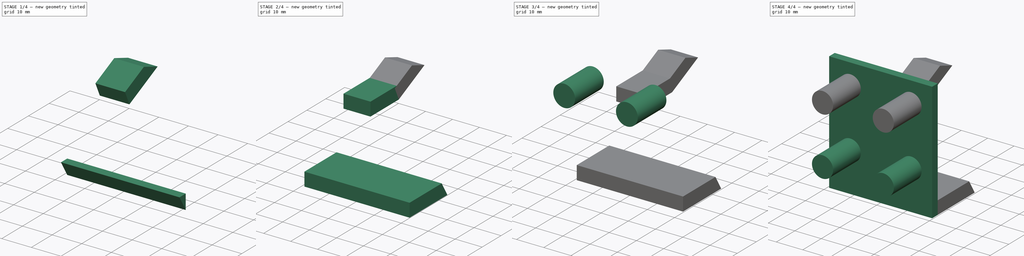
[diagram: build sequence overview — one tinted view per stage of 4, left to right]
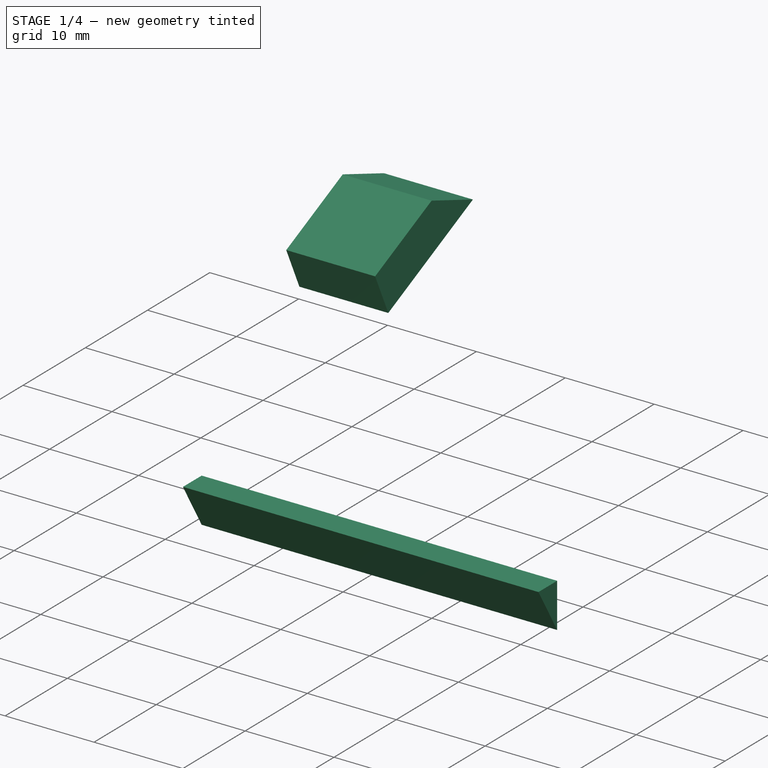
[diagram: stage 1 of 4 — iso view after this stage's code; geometry added in this stage tinted green]
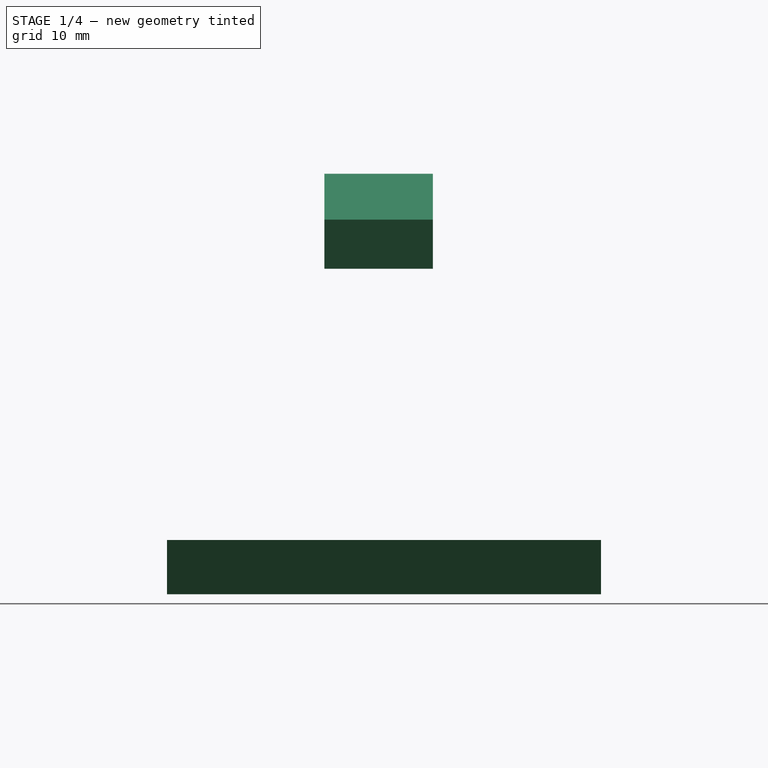
[diagram: stage 1 of 4 — front view after this stage's code; geometry added in this stage tinted green]
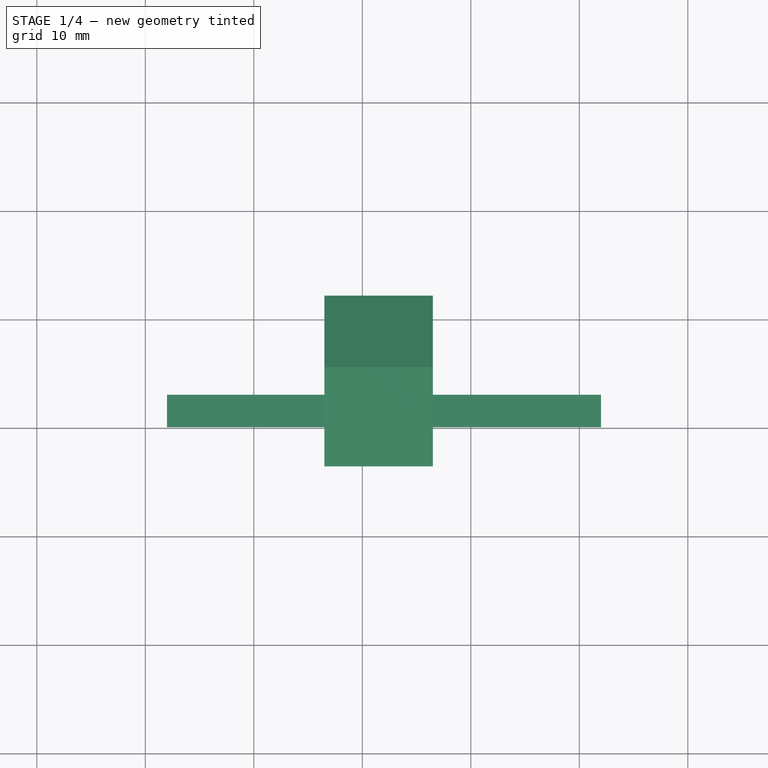
[diagram: stage 1 of 4 — top view after this stage's code; geometry added in this stage tinted green]
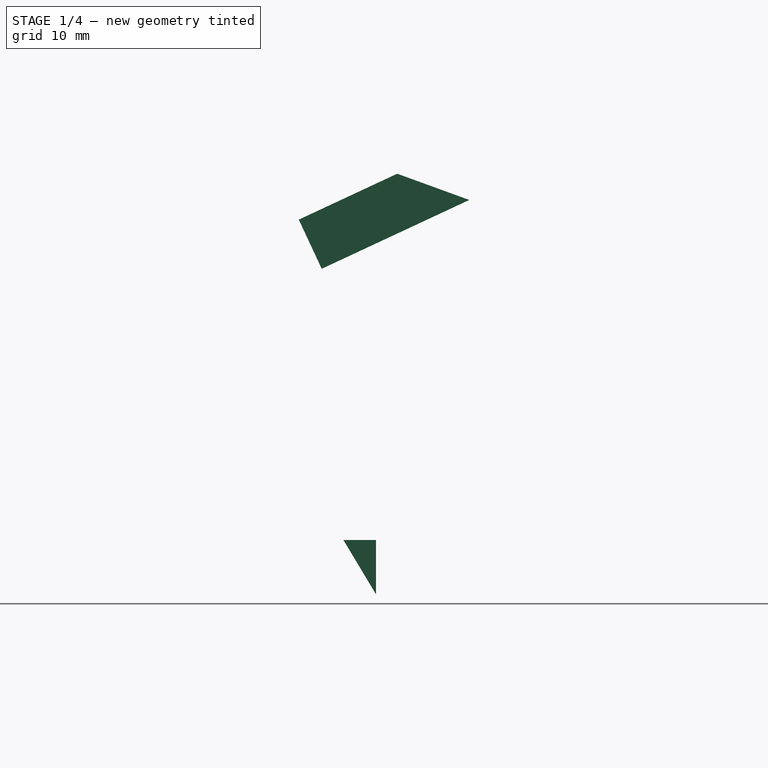
[diagram: stage 1 of 4 — right view after this stage's code; geometry added in this stage tinted green]
FCSTD DOCUMENT  (FreeCAD 0.15R4671 (Git))
Label: Holder_V7
License: All rights reserved
LicenseURL: http://en.wikipedia.org/wiki/All_rights_reserved
objects: Part::Box×4, Part::Cylinder×4, Sketcher::SketchObject×1, PartDesign::Pad×1, Part::Cut×1, Part::Chamfer×1
note: 13 computed .brp shape members not serialized (recipe doc carries the construction recipe); baked Part::Feature solids carry a one-line shape summary decoded from their .brp

FEATURE [Part::Box] Box003  label="Hook2"
  Height = 5
  Length = 10
  Placement = pos=(6.5,18,15) rot=(1,0,0;0.436332rad)
  Width = 15
FEATURE [Sketcher::SketchObject] Sketch
  Placement = pos=(32,23,-5) rot=(0.57735,0.57735,0.57735;2.0944rad)
  sketch-geometry (3):
    g0: LineSegment StartX=0 StartY=-5 StartZ=0 EndX=-3 EndY=-5 EndZ=0
    g1: LineSegment StartX=-3 StartY=-5 StartZ=0 EndX=5.3545e-08 EndY=-10 EndZ=0
    g2: LineSegment StartX=5.3545e-08 StartY=-10 StartZ=0 EndX=0 EndY=-5 EndZ=0
  constraints (9):
    c: Coincident(g0,g1)
    c: Coincident(g1,g2)
    c: Coincident(g2,g0)
    c: Distance(g0) = 3
    c: Distance(g2) = 5
    c: DistanceY(g-1,g0) = -5
    c: DistanceX(g-1,g0) = 0
    c: DistanceX(g-1,g0) = -3
    c: DistanceY(g-1,g1) = -10
FEATURE [PartDesign::Pad] Pad
  Length = 40
  Length2 = 100
  Placement = pos=(32,23,-5) rot=(0.57735,0.57735,0.57735;2.0944rad)
  Reversed = true
  Sketch = -> Sketch
  Type = 0
FEATURE [Part::Chamfer] Chamfer
  Base = -> Box003
  Edges = 1 edges r=4.99: [Edge12]
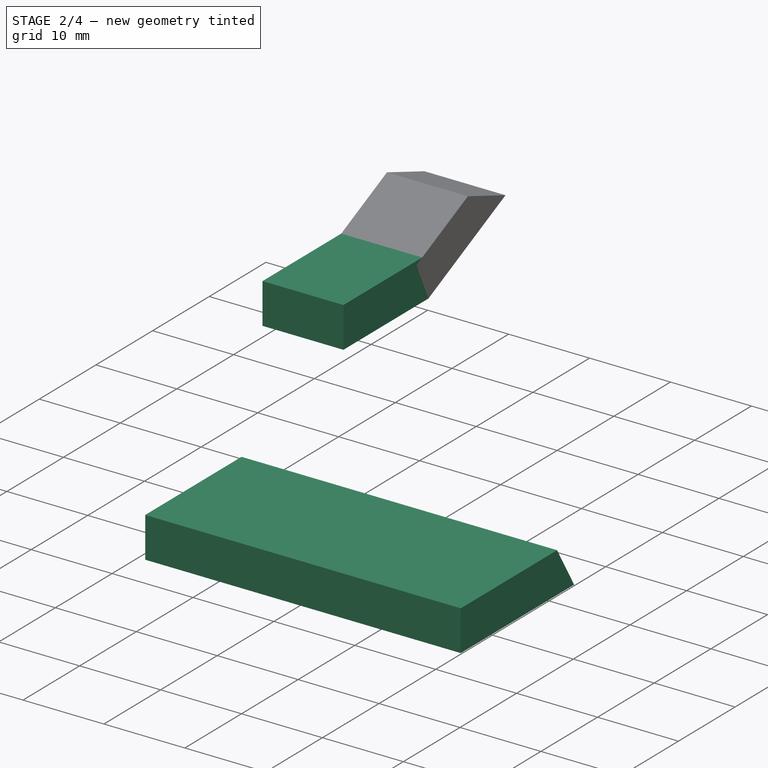
[diagram: stage 2 of 4 — iso view after this stage's code; geometry added in this stage tinted green]
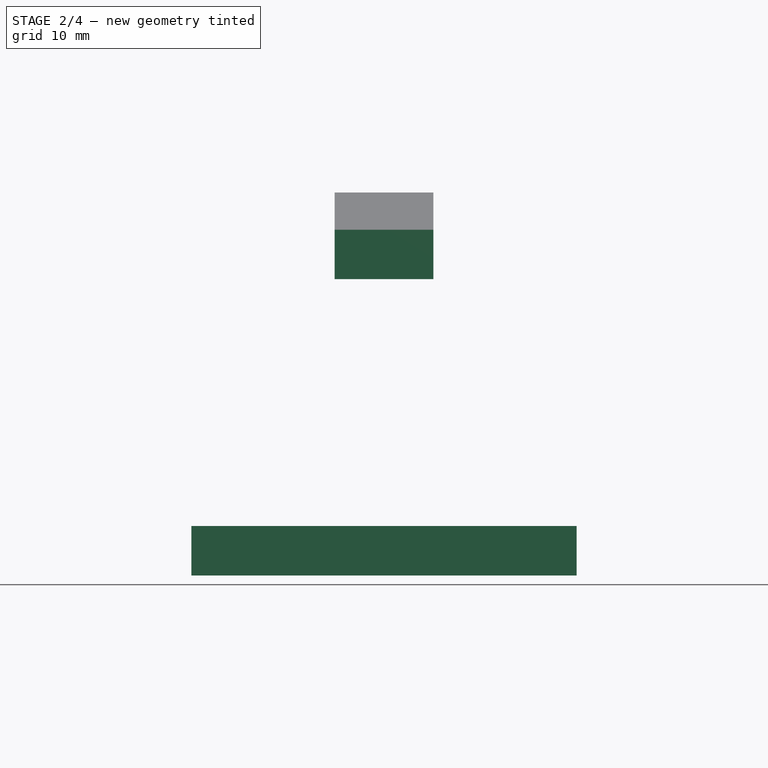
[diagram: stage 2 of 4 — front view after this stage's code; geometry added in this stage tinted green]
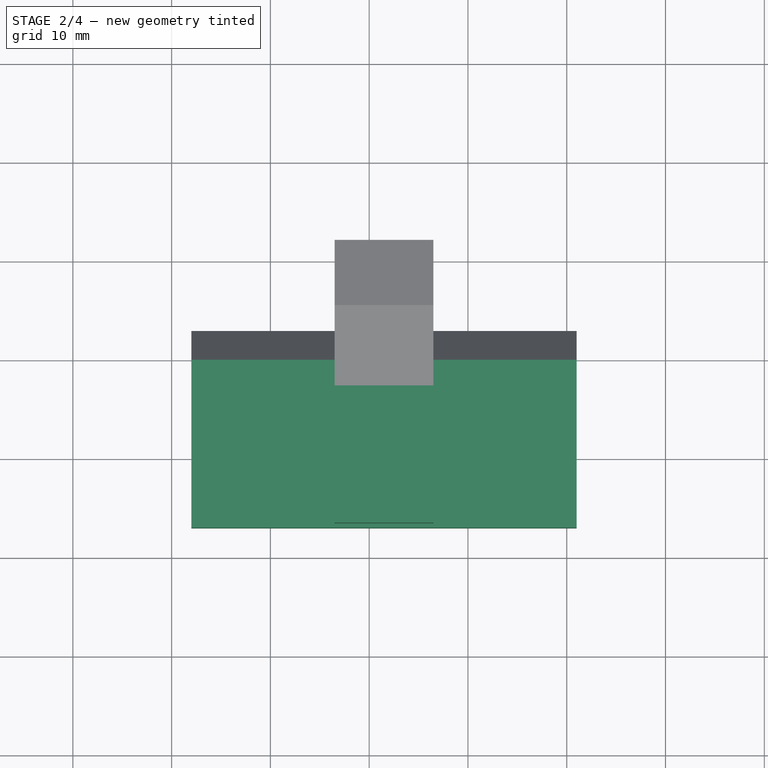
[diagram: stage 2 of 4 — top view after this stage's code; geometry added in this stage tinted green]
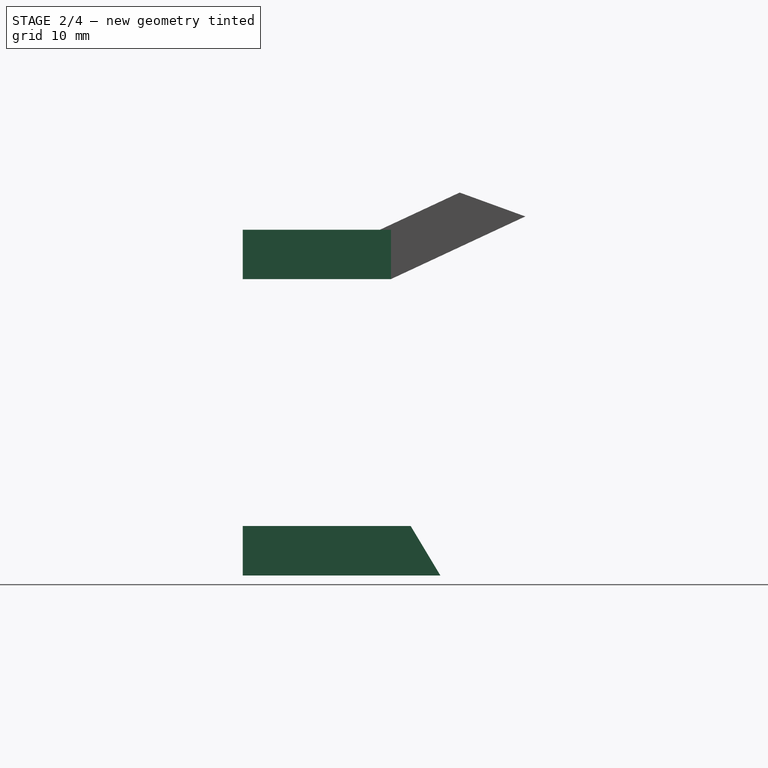
[diagram: stage 2 of 4 — right view after this stage's code; geometry added in this stage tinted green]
FEATURE [Part::Box] Box001  label="Holder"
  Height = 5
  Length = 39
  Placement = pos=(-8,3,-15) rot=(0,0,1;0rad)
  Width = 20
FEATURE [Part::Box] Box002  label="Hook"
  Height = 5
  Length = 10
  Placement = pos=(6.5,3,15) rot=(0,0,1;0rad)
  Width = 15
FEATURE [Part::Cut] Cut
  Base = -> Box001
  Tool = -> Pad
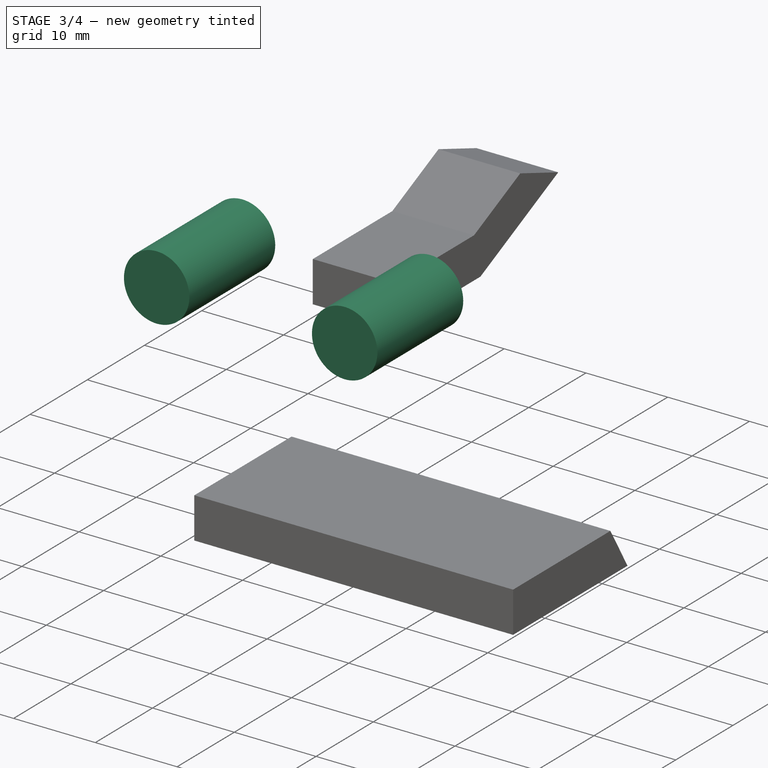
[diagram: stage 3 of 4 — iso view after this stage's code; geometry added in this stage tinted green]
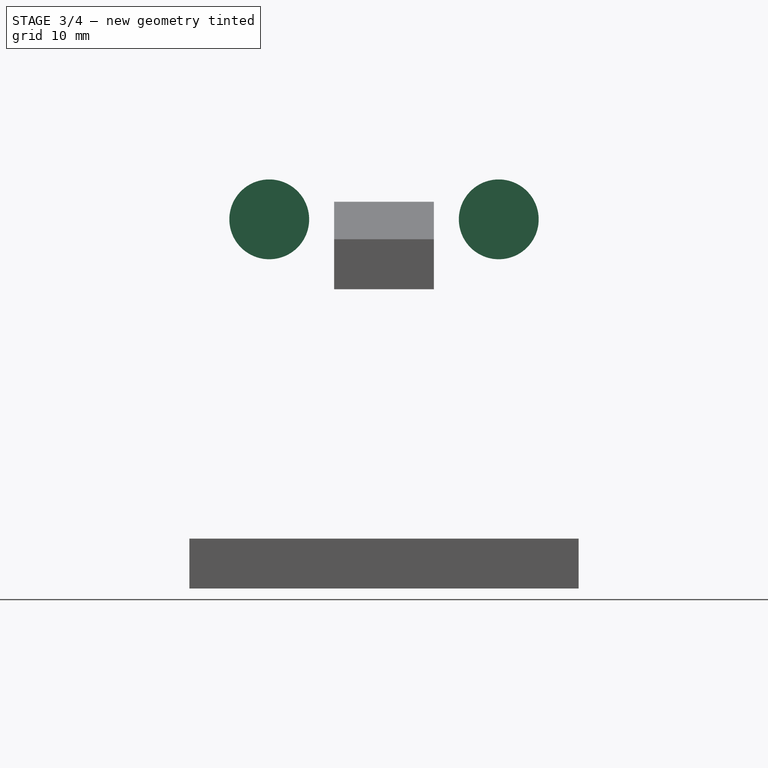
[diagram: stage 3 of 4 — front view after this stage's code; geometry added in this stage tinted green]
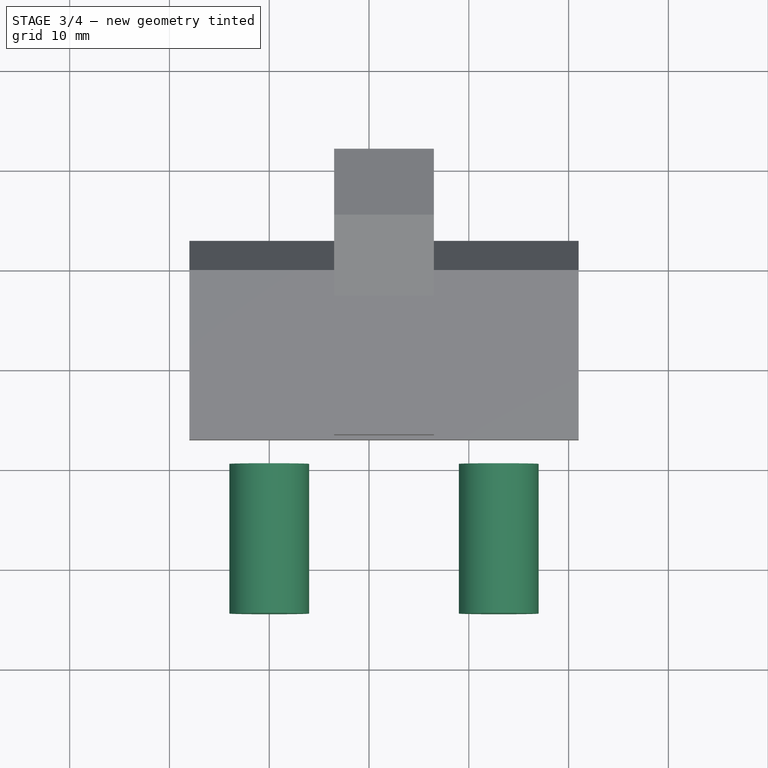
[diagram: stage 3 of 4 — top view after this stage's code; geometry added in this stage tinted green]
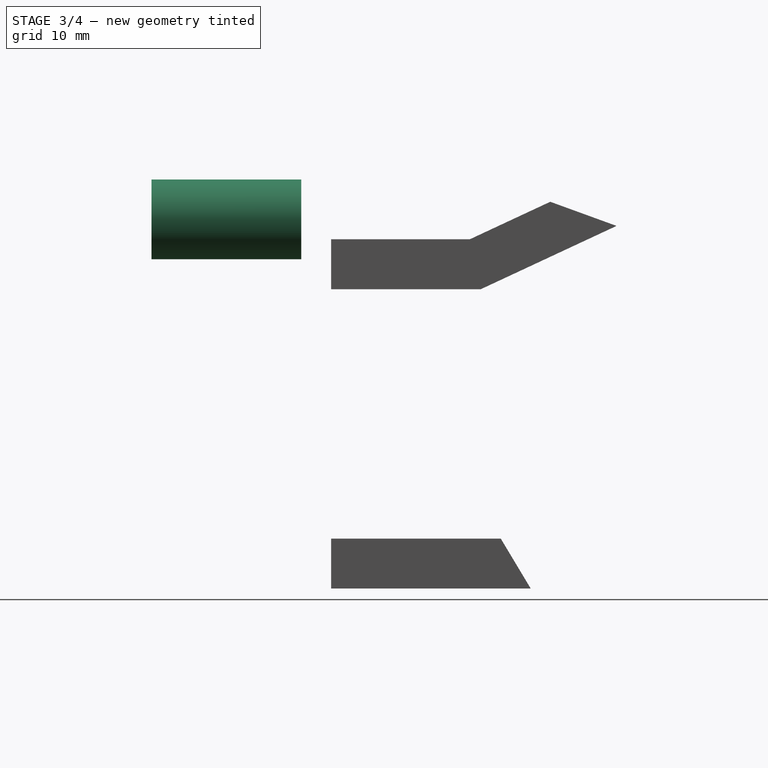
[diagram: stage 3 of 4 — right view after this stage's code; geometry added in this stage tinted green]
FEATURE [Part::Cylinder] Cylinder002  label="Pin3"
  Angle = 360
  Height = 15
  Placement = pos=(0,0,22) rot=(1,0,0;1.5708rad)
  Radius = 4
FEATURE [Part::Cylinder] Cylinder003  label="Pin4"
  Angle = 360
  Height = 15
  Placement = pos=(23,0,22) rot=(1,0,0;1.5708rad)
  Radius = 4
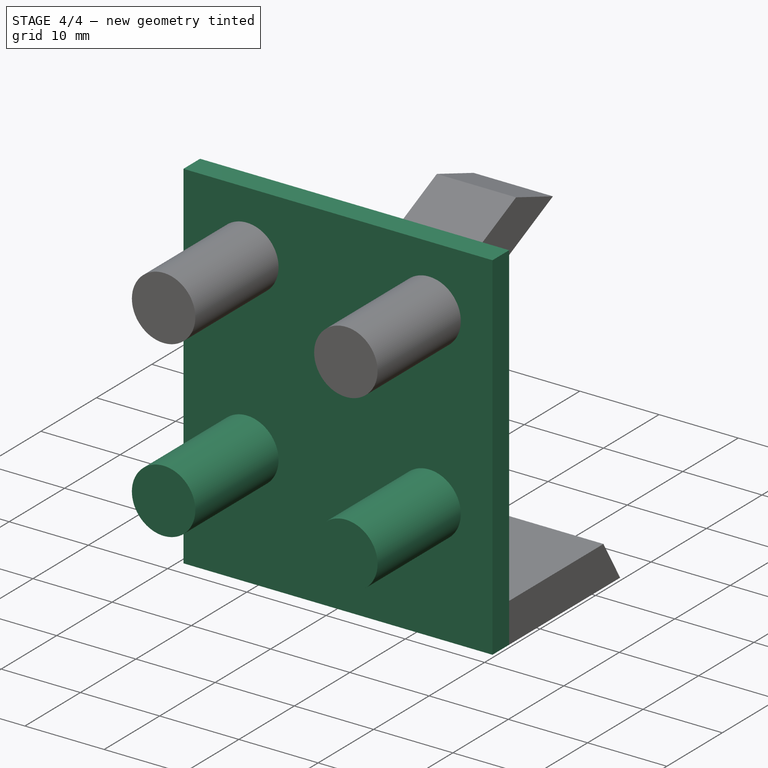
[diagram: stage 4 of 4 — iso view after this stage's code; geometry added in this stage tinted green]
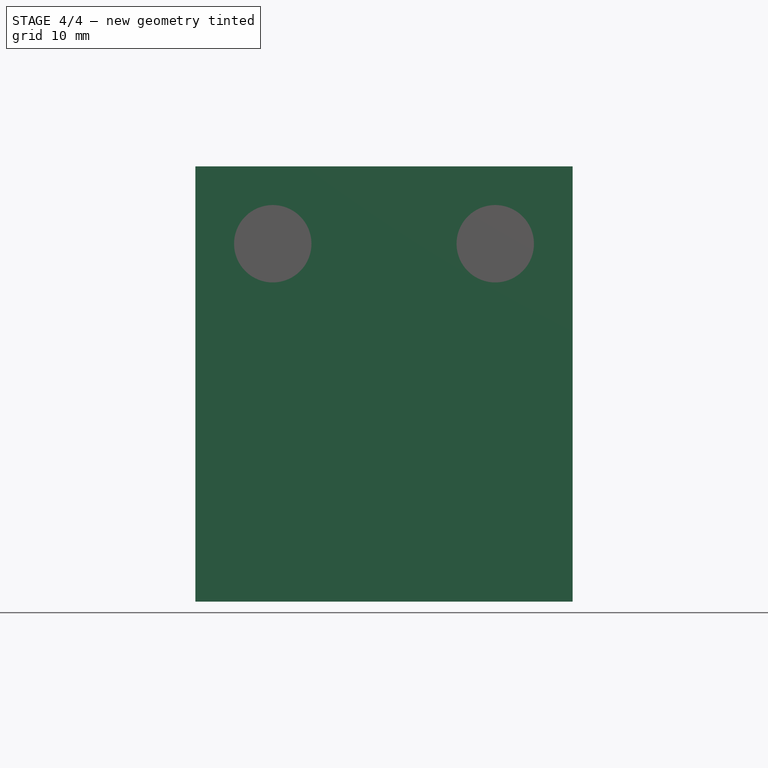
[diagram: stage 4 of 4 — front view after this stage's code; geometry added in this stage tinted green]
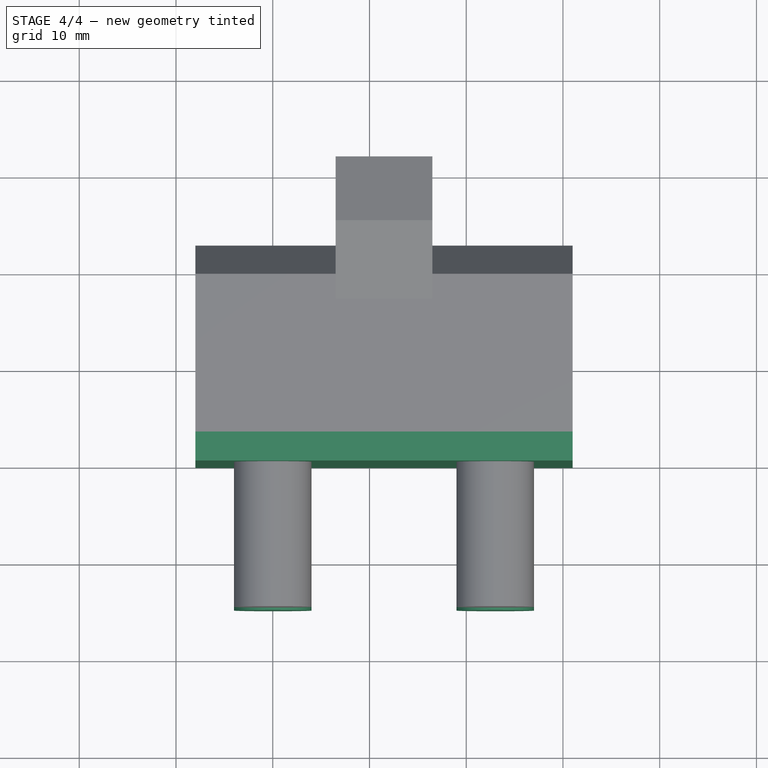
[diagram: stage 4 of 4 — top view after this stage's code; geometry added in this stage tinted green]
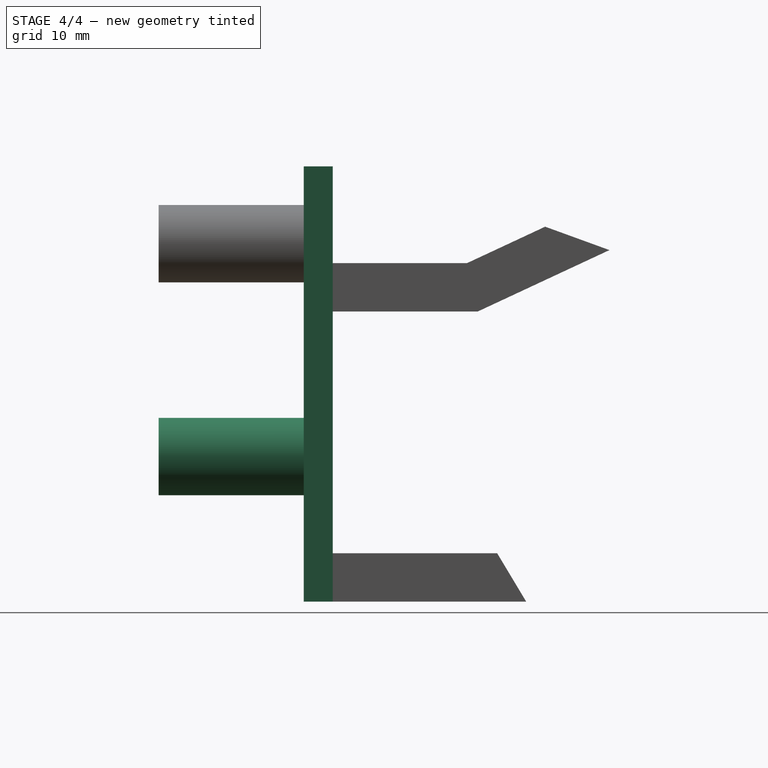
[diagram: stage 4 of 4 — right view after this stage's code; geometry added in this stage tinted green]
FEATURE [Part::Box] Box  label="Base"
  Height = 45
  Length = 39
  Placement = pos=(-8,0,-15) rot=(0,0,1;0rad)
  Width = 3
FEATURE [Part::Cylinder] Cylinder  label="Pin2"
  Angle = 360
  Height = 15
  Placement = pos=(23,0,0) rot=(1,0,0;1.5708rad)
  Radius = 4
FEATURE [Part::Cylinder] Cylinder001  label="Pin1"
  Angle = 360
  Height = 15
  Placement = pos=(0,0,0) rot=(1,0,0;1.5708rad)
  Radius = 4
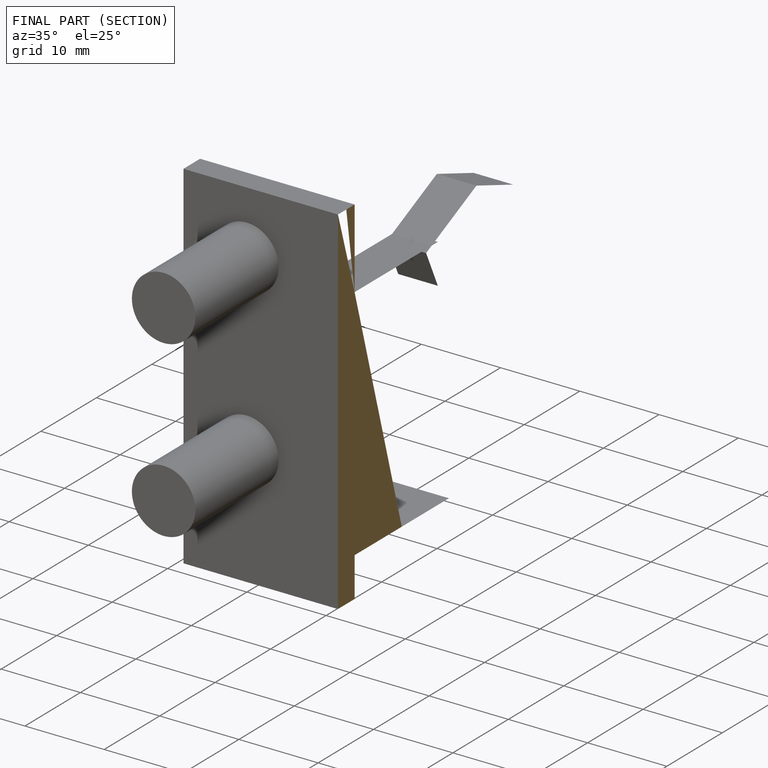
[diagram: finished part — half-section view (interior)]
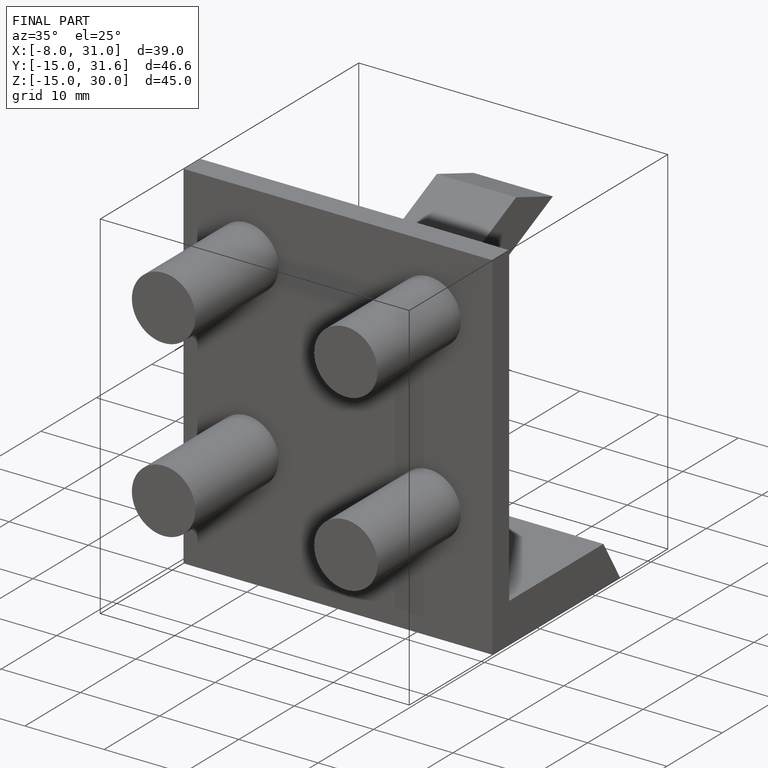
[diagram: finished part — iso view with bounding-box wireframe]
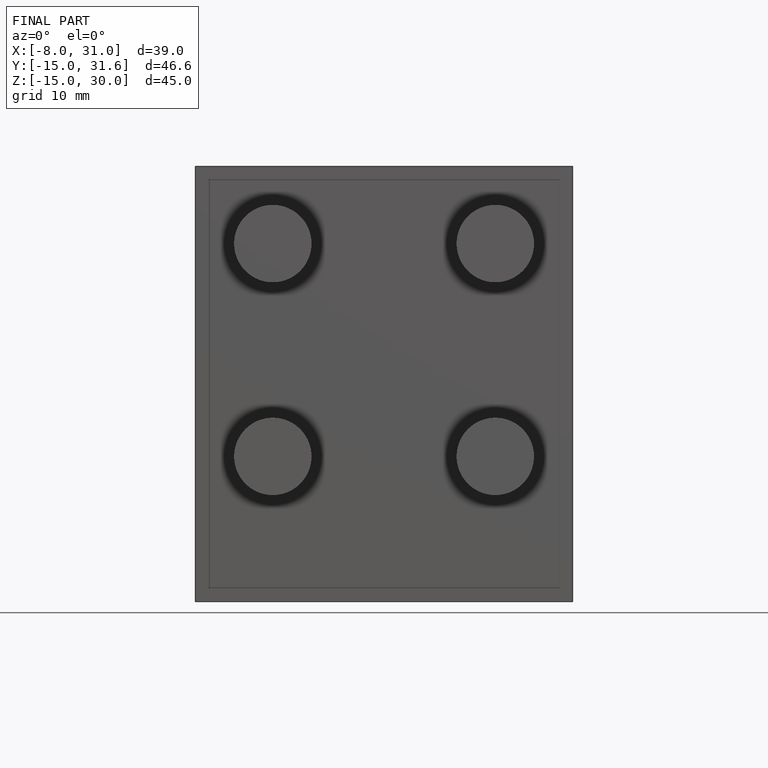
[diagram: finished part — front view with bounding-box wireframe]
